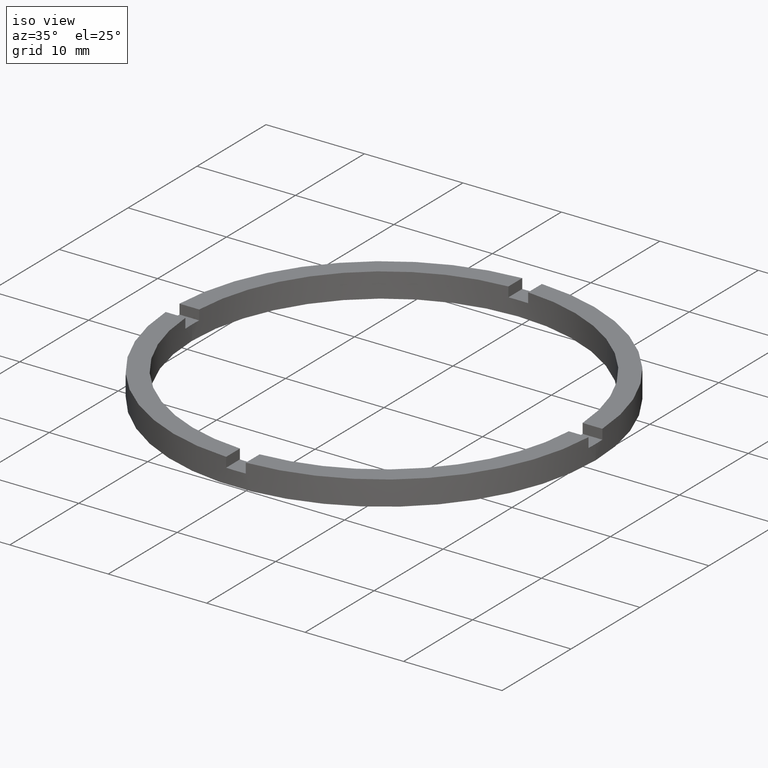
[diagram: clean part render]
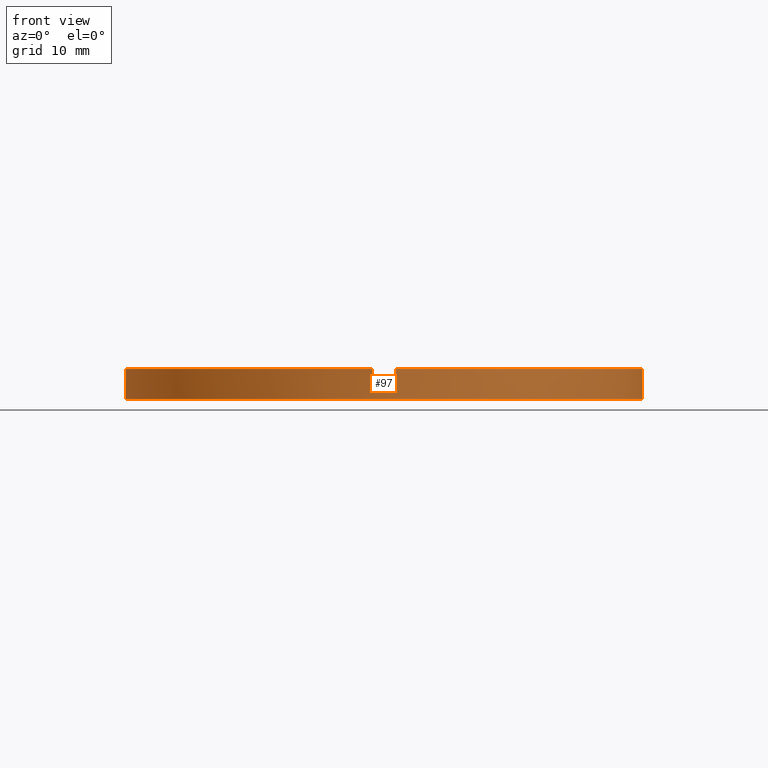
[diagram: tour spotlight — one face highlighted and labeled with its STEP entity id]
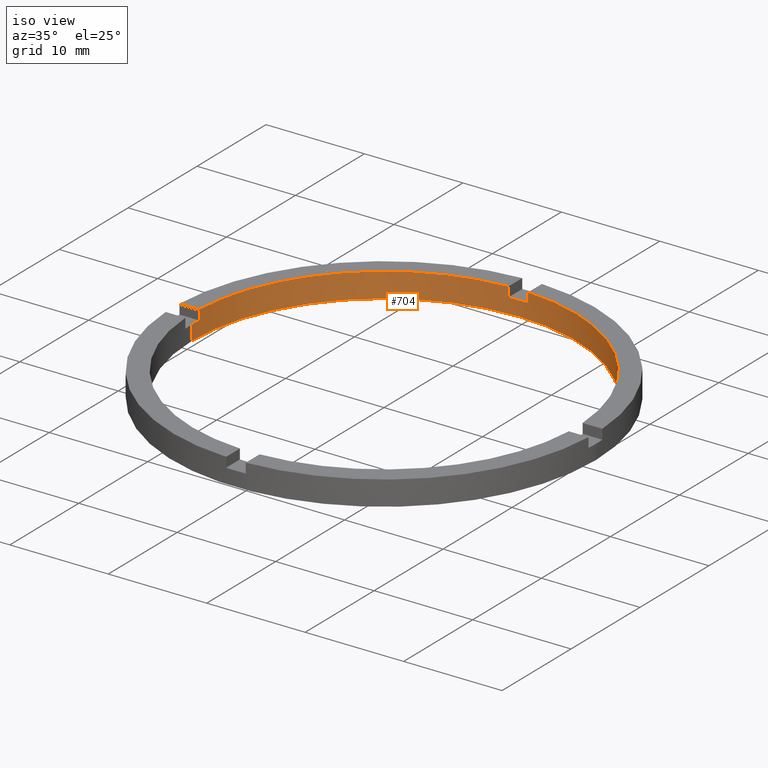
[diagram: tour spotlight — one face highlighted and labeled with its STEP entity id]
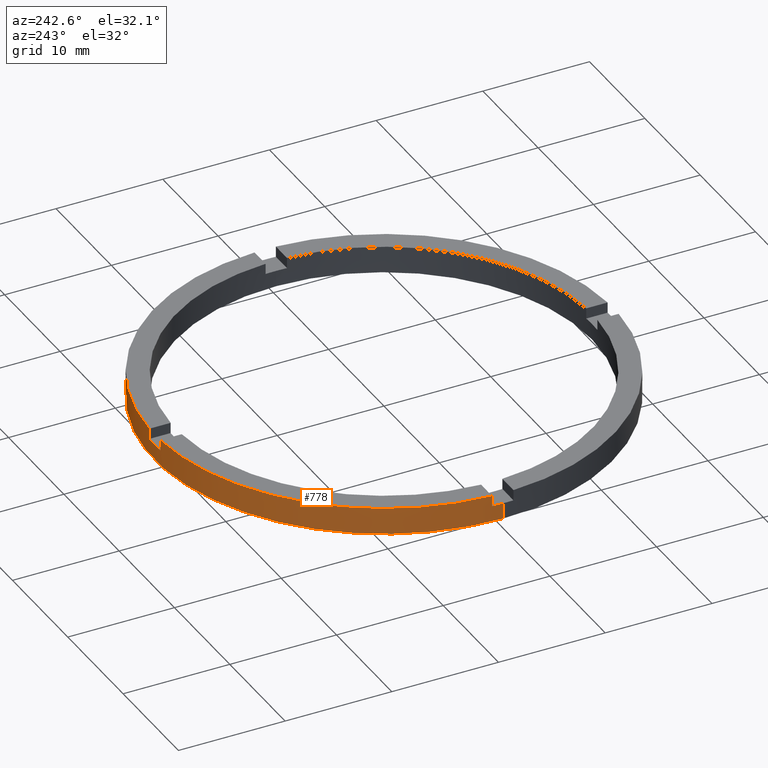
[diagram: tour spotlight — one face highlighted and labeled with its STEP entity id]
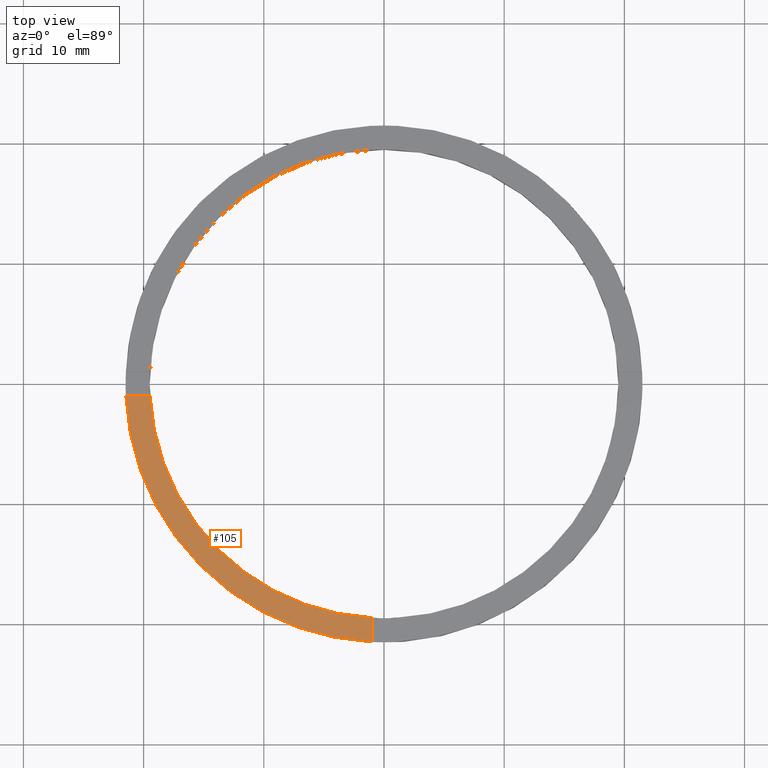
[diagram: tour spotlight — one face highlighted and labeled with its STEP entity id]
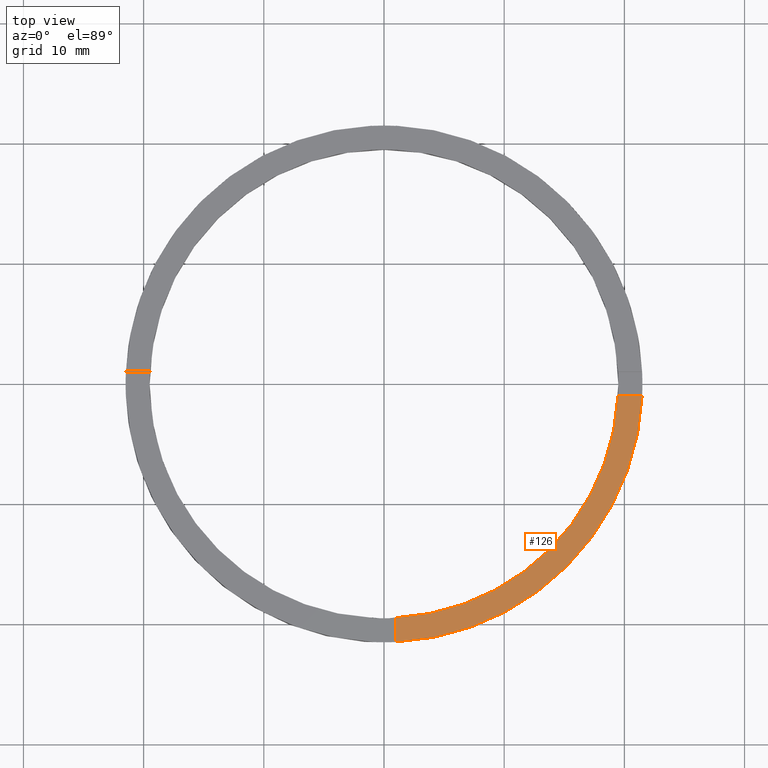
[diagram: tour spotlight — one face highlighted and labeled with its STEP entity id]
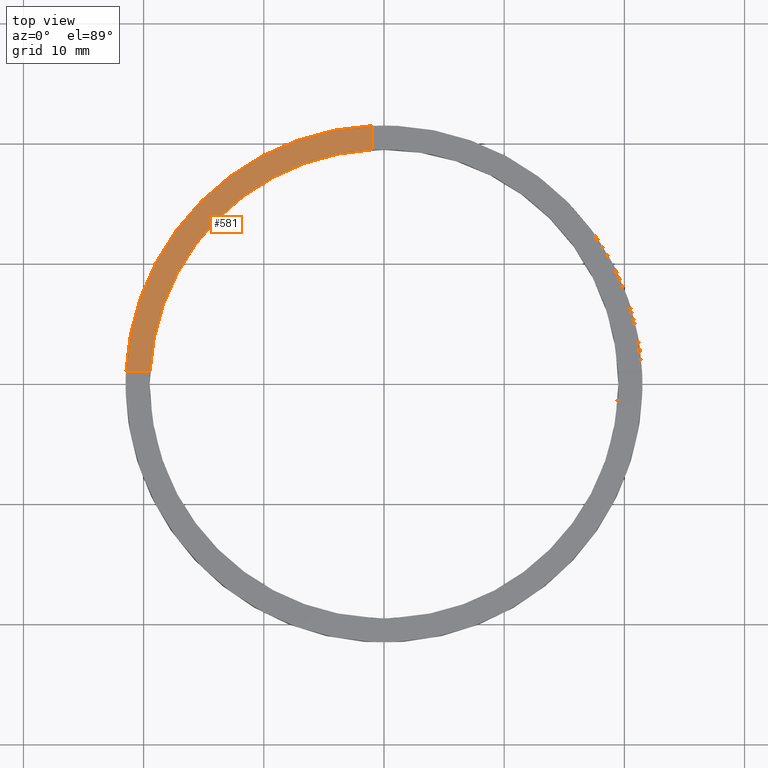
[diagram: tour spotlight — one face highlighted and labeled with its STEP entity id]
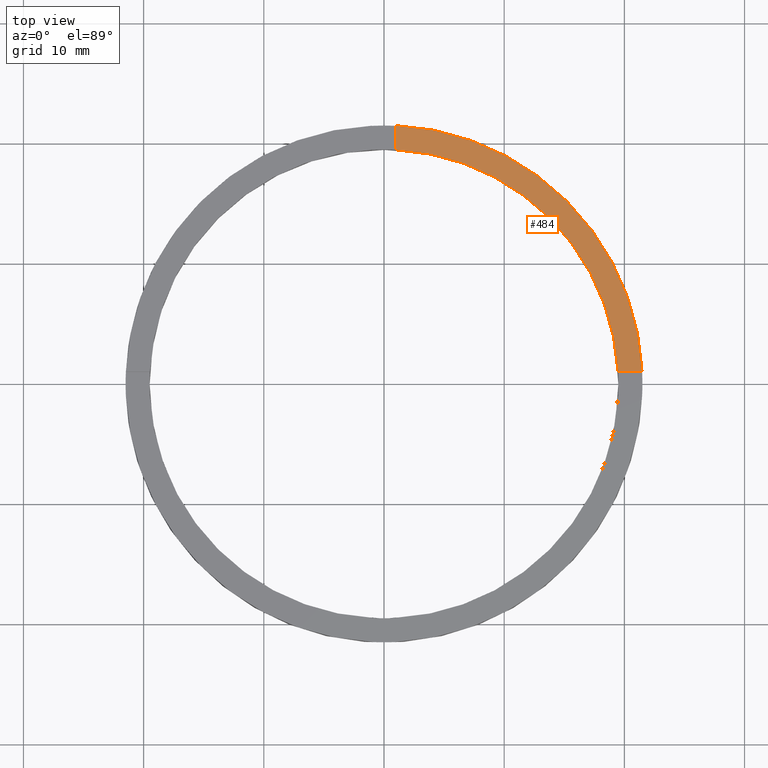
[diagram: tour spotlight — one face highlighted and labeled with its STEP entity id]
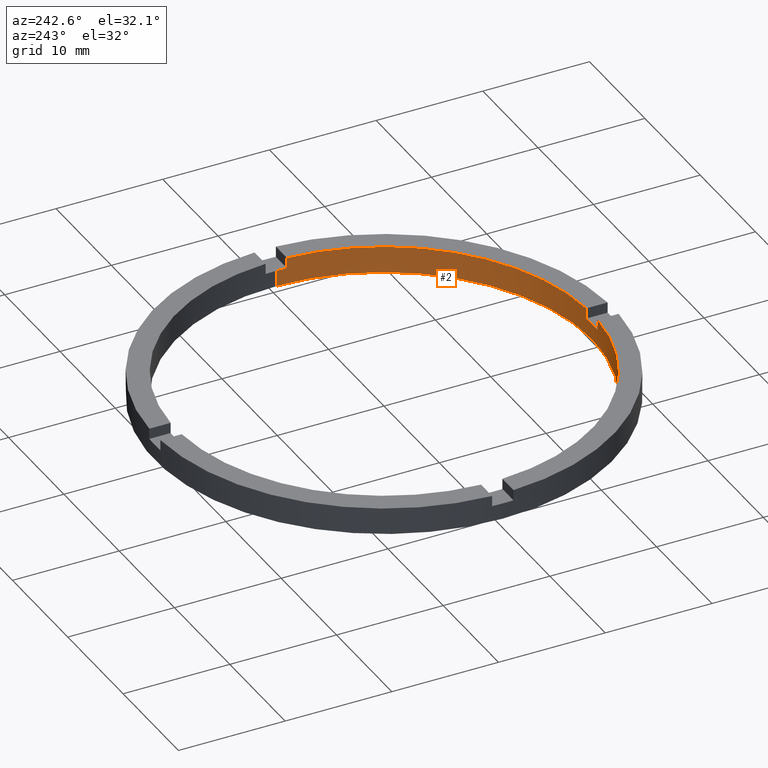
[diagram: tour spotlight — one face highlighted and labeled with its STEP entity id]
A machine part: a face-by-face anatomy tour. The part has 21 B-rep faces; the first image is the clean iso view, then the 8 largest visible faces are spotlighted one at a time (largest first), each with its STEP entity span.

Face 1 — front view, entity #97. In plain terms, the highlighted cylindrical surface (partial cylindrical patch) has radius 21.5 mm, axis along (-0, -0, -1).
Definition (entity closure, byte-faithful):
#17 = ORIENTED_EDGE ( 'NONE', *, *, #527, .T. ) ;
#29 = DIRECTION ( 'NONE',  ( -1.000000000000000000, 0.000000000000000000, 0.000000000000000000 ) ) ;
#36 = CARTESIAN_POINT ( 'NONE',  ( 0.000000000000000000, 0.000000000000000000, 1.500000000000000000 ) ) ;
#40 = CARTESIAN_POINT ( 'NONE',  ( -21.50000000000000000, 0.000000000000000000, 1.500000000000000000 ) ) ;
#43 = CARTESIAN_POINT ( 'NONE',  ( 21.47673159491452211, -1.000000000000158096, 2.500000000000000000 ) ) ;
#44 = VERTEX_POINT ( 'NONE', #427 ) ;
#50 = VERTEX_POINT ( 'NONE', #216 ) ;
#55 = DIRECTION ( 'NONE',  ( 0.000000000000000000, 0.000000000000000000, 1.000000000000000000 ) ) ;
#68 = DIRECTION ( 'NONE',  ( 1.000000000000000000, 0.000000000000000000, 0.000000000000000000 ) ) ;
#71 = CARTESIAN_POINT ( 'NONE',  ( 0.9999999999998386846, -21.47673159491453632, 2.500000000000000000 ) ) ;
#81 = EDGE_LOOP ( 'NONE', ( #532, #83, #336, #401, #357, #326, #722, #642, #17, #632, #572, #534 ) ) ;
#83 = ORIENTED_EDGE ( 'NONE', *, *, #582, .F. ) ;
#90 = VERTEX_POINT ( 'NONE', #731 ) ;
#92 = DIRECTION ( 'NONE',  ( 1.000000000000000000, 0.000000000000000000, 0.000000000000000000 ) ) ;
#97 = ADVANCED_FACE ( 'NONE', ( #143 ), #693, .T. ) ;
#102 = VERTEX_POINT ( 'NONE', #71 ) ;
#127 = CIRCLE ( 'NONE', #242, 21.50000000000000000 ) ;
#129 = AXIS2_PLACEMENT_3D ( 'NONE', #36, #482, #525 ) ;
#130 = LINE ( 'NONE', #763, #430 ) ;
#143 = FACE_OUTER_BOUND ( 'NONE', #81, .T. ) ;
#144 = CARTESIAN_POINT ( 'NONE',  ( -21.50000000000000000, 0.000000000000000000, 0.000000000000000000 ) ) ;
#174 = VECTOR ( 'NONE', #176, 1000.000000000000000 ) ;
#176 = DIRECTION ( 'NONE',  ( -0.000000000000000000, -0.000000000000000000, -1.000000000000000000 ) ) ;
#178 = LINE ( 'NONE', #644, #174 ) ;
#185 = VERTEX_POINT ( 'NONE', #514 ) ;
#208 = CARTESIAN_POINT ( 'NONE',  ( 0.000000000000000000, 0.000000000000000000, 1.500000000000000000 ) ) ;
#209 = EDGE_CURVE ( 'NONE', #274, #337, #678, .T. ) ;
#216 = CARTESIAN_POINT ( 'NONE',  ( -21.47673159491452566, -1.000000000000024869, 2.500000000000000000 ) ) ;
#221 = AXIS2_PLACEMENT_3D ( 'NONE', #695, #541, #537 ) ;
#225 = EDGE_CURVE ( 'NONE', #44, #738, #691, .T. ) ;
#242 = AXIS2_PLACEMENT_3D ( 'NONE', #470, #465, #68 ) ;
#251 = DIRECTION ( 'NONE',  ( -0.000000000000000000, -0.000000000000000000, -1.000000000000000000 ) ) ;
#257 = EDGE_CURVE ( 'NONE', #102, #372, #650, .T. ) ;
#264 = CARTESIAN_POINT ( 'NONE',  ( 21.50000000000000000, 2.632990618166809235E-15, 0.000000000000000000 ) ) ;
#267 = DIRECTION ( 'NONE',  ( 0.000000000000000000, 0.000000000000000000, 1.000000000000000000 ) ) ;
#274 = VERTEX_POINT ( 'NONE', #40 ) ;
#288 = AXIS2_PLACEMENT_3D ( 'NONE', #208, #55, #730 ) ;
#298 = CARTESIAN_POINT ( 'NONE',  ( -1.000000000000161426, -21.47673159491451855, 2.500000000000000000 ) ) ;
#301 = DIRECTION ( 'NONE',  ( -0.000000000000000000, -0.000000000000000000, -1.000000000000000000 ) ) ;
#302 = AXIS2_PLACEMENT_3D ( 'NONE', #721, #762, #304 ) ;
#304 = DIRECTION ( 'NONE',  ( 1.000000000000000000, 0.000000000000000000, 0.000000000000000000 ) ) ;
#310 = VERTEX_POINT ( 'NONE', #298 ) ;
#321 = AXIS2_PLACEMENT_3D ( 'NONE', #563, #767, #29 ) ;
#326 = ORIENTED_EDGE ( 'NONE', *, *, #483, .F. ) ;
#336 = ORIENTED_EDGE ( 'NONE', *, *, #405, .T. ) ;
#337 = VERTEX_POINT ( 'NONE', #144 ) ;
#353 = VERTEX_POINT ( 'NONE', #479 ) ;
#357 = ORIENTED_EDGE ( 'NONE', *, *, #753, .T. ) ;
#372 = VERTEX_POINT ( 'NONE', #779 ) ;
#401 = ORIENTED_EDGE ( 'NONE', *, *, #257, .F. ) ;
#402 = CIRCLE ( 'NONE', #302, 21.50000000000000000 ) ;
#405 = EDGE_CURVE ( 'NONE', #353, #372, #673, .T. ) ;
#424 = VECTOR ( 'NONE', #251, 1000.000000000000000 ) ;
#427 = CARTESIAN_POINT ( 'NONE',  ( 21.50000000000000000, 2.632990618166809235E-15, 1.500000000000000000 ) ) ;
#430 = VECTOR ( 'NONE', #301, 1000.000000000000000 ) ;
#435 = DIRECTION ( 'NONE',  ( 0.000000000000000000, 0.000000000000000000, 1.000000000000000000 ) ) ;
#437 = LINE ( 'NONE', #774, #444 ) ;
#444 = VECTOR ( 'NONE', #267, 1000.000000000000000 ) ;
#465 = DIRECTION ( 'NONE',  ( 0.000000000000000000, 0.000000000000000000, 1.000000000000000000 ) ) ;
#470 = CARTESIAN_POINT ( 'NONE',  ( 0.000000000000000000, 0.000000000000000000, 2.500000000000000000 ) ) ;
#479 = CARTESIAN_POINT ( 'NONE',  ( 21.47673159491452211, -1.000000000000158096, 1.500000000000000000 ) ) ;
#482 = DIRECTION ( 'NONE',  ( 0.000000000000000000, 0.000000000000000000, 1.000000000000000000 ) ) ;
#483 = EDGE_CURVE ( 'NONE', #576, #185, #402, .T. ) ;
#514 = CARTESIAN_POINT ( 'NONE',  ( 0.9999999999998386846, -21.47673159491453632, 1.500000000000000000 ) ) ;
#525 = DIRECTION ( 'NONE',  ( 1.000000000000000000, 0.000000000000000000, 0.000000000000000000 ) ) ;
#527 = EDGE_CURVE ( 'NONE', #50, #90, #130, .T. ) ;
#532 = ORIENTED_EDGE ( 'NONE', *, *, #225, .F. ) ;
#534 = ORIENTED_EDGE ( 'NONE', *, *, #660, .T. ) ;
#537 = DIRECTION ( 'NONE',  ( 1.000000000000000000, 0.000000000000000000, 0.000000000000000000 ) ) ;
#541 = DIRECTION ( 'NONE',  ( 0.000000000000000000, 0.000000000000000000, 1.000000000000000000 ) ) ;
#548 = CARTESIAN_POINT ( 'NONE',  ( -1.000000000000161426, -21.47673159491451855, 1.500000000000000000 ) ) ;
#557 = EDGE_CURVE ( 'NONE', #50, #310, #127, .T. ) ;
#563 = CARTESIAN_POINT ( 'NONE',  ( 0.000000000000000000, 0.000000000000000000, 2.500000000000000000 ) ) ;
#572 = ORIENTED_EDGE ( 'NONE', *, *, #209, .T. ) ;
#576 = VERTEX_POINT ( 'NONE', #548 ) ;
#582 = EDGE_CURVE ( 'NONE', #353, #44, #686, .T. ) ;
#584 = CARTESIAN_POINT ( 'NONE',  ( -21.50000000000000000, 0.000000000000000000, 2.500000000000000000 ) ) ;
#590 = DIRECTION ( 'NONE',  ( 0.000000000000000000, 0.000000000000000000, 1.000000000000000000 ) ) ;
#632 = ORIENTED_EDGE ( 'NONE', *, *, #723, .F. ) ;
#642 = ORIENTED_EDGE ( 'NONE', *, *, #557, .F. ) ;
#644 = CARTESIAN_POINT ( 'NONE',  ( 0.9999999999998386846, -21.47673159491453632, 2.500000000000000000 ) ) ;
#650 = CIRCLE ( 'NONE', #221, 21.50000000000000000 ) ;
#660 = EDGE_CURVE ( 'NONE', #337, #738, #696, .T. ) ;
#673 = LINE ( 'NONE', #43, #690 ) ;
#678 = LINE ( 'NONE', #584, #700 ) ;
#686 = CIRCLE ( 'NONE', #288, 21.50000000000000000 ) ;
#690 = VECTOR ( 'NONE', #590, 1000.000000000000000 ) ;
#691 = LINE ( 'NONE', #781, #424 ) ;
#693 = CYLINDRICAL_SURFACE ( 'NONE', #321, 21.50000000000000000 ) ;
#694 = DIRECTION ( 'NONE',  ( -0.000000000000000000, -0.000000000000000000, -1.000000000000000000 ) ) ;
#695 = CARTESIAN_POINT ( 'NONE',  ( 0.000000000000000000, 0.000000000000000000, 2.500000000000000000 ) ) ;
#696 = CIRCLE ( 'NONE', #777, 21.50000000000000000 ) ;
#700 = VECTOR ( 'NONE', #694, 1000.000000000000000 ) ;
#708 = CIRCLE ( 'NONE', #129, 21.50000000000000000 ) ;
#721 = CARTESIAN_POINT ( 'NONE',  ( 0.000000000000000000, 0.000000000000000000, 1.500000000000000000 ) ) ;
#722 = ORIENTED_EDGE ( 'NONE', *, *, #759, .T. ) ;
#723 = EDGE_CURVE ( 'NONE', #274, #90, #708, .T. ) ;
#730 = DIRECTION ( 'NONE',  ( 1.000000000000000000, 0.000000000000000000, 0.000000000000000000 ) ) ;
#731 = CARTESIAN_POINT ( 'NONE',  ( -21.47673159491452566, -1.000000000000024869, 1.500000000000000000 ) ) ;
#738 = VERTEX_POINT ( 'NONE', #264 ) ;
#753 = EDGE_CURVE ( 'NONE', #102, #185, #178, .T. ) ;
#759 = EDGE_CURVE ( 'NONE', #576, #310, #437, .T. ) ;
#762 = DIRECTION ( 'NONE',  ( -0.000000000000000000, 0.000000000000000000, 1.000000000000000000 ) ) ;
#763 = CARTESIAN_POINT ( 'NONE',  ( -21.47673159491452566, -1.000000000000024869, 2.500000000000000000 ) ) ;
#767 = DIRECTION ( 'NONE',  ( -0.000000000000000000, -0.000000000000000000, -1.000000000000000000 ) ) ;
#774 = CARTESIAN_POINT ( 'NONE',  ( -1.000000000000161426, -21.47673159491451855, 2.500000000000000000 ) ) ;
#776 = CARTESIAN_POINT ( 'NONE',  ( 0.000000000000000000, 0.000000000000000000, 0.000000000000000000 ) ) ;
#777 = AXIS2_PLACEMENT_3D ( 'NONE', #776, #435, #92 ) ;
#779 = CARTESIAN_POINT ( 'NONE',  ( 21.47673159491452211, -1.000000000000158096, 2.500000000000000000 ) ) ;
#781 = CARTESIAN_POINT ( 'NONE',  ( 21.50000000000000000, 2.632990618166809235E-15, 2.500000000000000000 ) ) ;

Face 2 — iso view, entity #704. In plain terms, the highlighted cylindrical surface (partial cylindrical patch) has radius 19.5 mm, axis along (-0, -0, -1).
Definition (entity closure, byte-faithful):
#8 = ORIENTED_EDGE ( 'NONE', *, *, #333, .F. ) ;
#11 = EDGE_CURVE ( 'NONE', #641, #79, #125, .T. ) ;
#16 = VERTEX_POINT ( 'NONE', #668 ) ;
#21 = AXIS2_PLACEMENT_3D ( 'NONE', #515, #561, #222 ) ;
#22 = CARTESIAN_POINT ( 'NONE',  ( 0.9999999999999744649, 19.47434209415044748, 1.500000000000000000 ) ) ;
#32 = DIRECTION ( 'NONE',  ( 1.000000000000000000, 0.000000000000000000, 0.000000000000000000 ) ) ;
#34 = DIRECTION ( 'NONE',  ( 0.000000000000000000, 0.000000000000000000, 1.000000000000000000 ) ) ;
#35 = EDGE_CURVE ( 'NONE', #16, #275, #131, .T. ) ;
#52 = CARTESIAN_POINT ( 'NONE',  ( 19.47434209415045459, 0.9999999999998419042, 2.500000000000000000 ) ) ;
#54 = CARTESIAN_POINT ( 'NONE',  ( 0.000000000000000000, 0.000000000000000000, 2.500000000000000000 ) ) ;
#57 = ORIENTED_EDGE ( 'NONE', *, *, #280, .T. ) ;
#59 = ORIENTED_EDGE ( 'NONE', *, *, #171, .T. ) ;
#63 = ORIENTED_EDGE ( 'NONE', *, *, #11, .F. ) ;
#70 = DIRECTION ( 'NONE',  ( 1.000000000000000000, 0.000000000000000000, 0.000000000000000000 ) ) ;
#75 = ORIENTED_EDGE ( 'NONE', *, *, #761, .F. ) ;
#79 = VERTEX_POINT ( 'NONE', #720 ) ;
#88 = ORIENTED_EDGE ( 'NONE', *, *, #230, .T. ) ;
#121 = DIRECTION ( 'NONE',  ( 1.000000000000000000, 0.000000000000000000, 0.000000000000000000 ) ) ;
#125 = LINE ( 'NONE', #193, #394 ) ;
#131 = LINE ( 'NONE', #229, #149 ) ;
#136 = LINE ( 'NONE', #260, #658 ) ;
#137 = ORIENTED_EDGE ( 'NONE', *, *, #447, .T. ) ;
#139 = CIRCLE ( 'NONE', #707, 19.50000000000000000 ) ;
#149 = VECTOR ( 'NONE', #273, 1000.000000000000000 ) ;
#155 = CIRCLE ( 'NONE', #733, 19.50000000000000000 ) ;
#164 = VECTOR ( 'NONE', #568, 1000.000000000000000 ) ;
#171 = EDGE_CURVE ( 'NONE', #187, #737, #419, .T. ) ;
#175 = CIRCLE ( 'NONE', #262, 19.50000000000000000 ) ;
#177 = CYLINDRICAL_SURFACE ( 'NONE', #21, 19.50000000000000000 ) ;
#187 = VERTEX_POINT ( 'NONE', #196 ) ;
#193 = CARTESIAN_POINT ( 'NONE',  ( 0.9999999999999744649, 19.47434209415044748, 2.500000000000000000 ) ) ;
#196 = CARTESIAN_POINT ( 'NONE',  ( -19.47434209415044748, 0.9999999999999753530, 1.500000000000000000 ) ) ;
#202 = EDGE_CURVE ( 'NONE', #306, #387, #422, .T. ) ;
#205 = CARTESIAN_POINT ( 'NONE',  ( 0.000000000000000000, 0.000000000000000000, 1.500000000000000000 ) ) ;
#213 = DIRECTION ( 'NONE',  ( 0.000000000000000000, 0.000000000000000000, 1.000000000000000000 ) ) ;
#214 = CARTESIAN_POINT ( 'NONE',  ( 19.47434209415045459, 0.9999999999998419042, 2.500000000000000000 ) ) ;
#222 = DIRECTION ( 'NONE',  ( -1.000000000000000000, 0.000000000000000000, 0.000000000000000000 ) ) ;
#229 = CARTESIAN_POINT ( 'NONE',  ( -1.000000000000025535, 19.47434209415044748, 2.500000000000000000 ) ) ;
#230 = EDGE_CURVE ( 'NONE', #16, #308, #155, .T. ) ;
#231 = CARTESIAN_POINT ( 'NONE',  ( 19.47434209415045459, 0.9999999999998419042, 1.500000000000000000 ) ) ;
#239 = CARTESIAN_POINT ( 'NONE',  ( -19.47434209415044748, 0.9999999999999753530, 2.500000000000000000 ) ) ;
#248 = CARTESIAN_POINT ( 'NONE',  ( 19.50000000000000000, 2.388061258337338939E-15, 0.000000000000000000 ) ) ;
#260 = CARTESIAN_POINT ( 'NONE',  ( -19.47434209415044748, 0.9999999999999753530, 2.500000000000000000 ) ) ;
#262 = AXIS2_PLACEMENT_3D ( 'NONE', #316, #518, #32 ) ;
#273 = DIRECTION ( 'NONE',  ( -0.000000000000000000, -0.000000000000000000, -1.000000000000000000 ) ) ;
#275 = VERTEX_POINT ( 'NONE', #596 ) ;
#277 = CARTESIAN_POINT ( 'NONE',  ( -19.50000000000000000, 0.000000000000000000, 2.500000000000000000 ) ) ;
#280 = EDGE_CURVE ( 'NONE', #570, #79, #433, .T. ) ;
#284 = DIRECTION ( 'NONE',  ( 0.000000000000000000, 0.000000000000000000, 1.000000000000000000 ) ) ;
#290 = VERTEX_POINT ( 'NONE', #709 ) ;
#291 = CARTESIAN_POINT ( 'NONE',  ( 0.000000000000000000, 0.000000000000000000, 2.500000000000000000 ) ) ;
#306 = VERTEX_POINT ( 'NONE', #754 ) ;
#308 = VERTEX_POINT ( 'NONE', #239 ) ;
#311 = DIRECTION ( 'NONE',  ( 1.000000000000000000, 0.000000000000000000, 0.000000000000000000 ) ) ;
#312 = EDGE_LOOP ( 'NONE', ( #344, #137, #8, #57, #63, #373, #727, #88, #726, #59, #665, #75 ) ) ;
#316 = CARTESIAN_POINT ( 'NONE',  ( 0.000000000000000000, 0.000000000000000000, 0.000000000000000000 ) ) ;
#333 = EDGE_CURVE ( 'NONE', #570, #672, #705, .T. ) ;
#344 = ORIENTED_EDGE ( 'NONE', *, *, #202, .F. ) ;
#373 = ORIENTED_EDGE ( 'NONE', *, *, #509, .T. ) ;
#387 = VERTEX_POINT ( 'NONE', #248 ) ;
#388 = DIRECTION ( 'NONE',  ( 0.000000000000000000, 0.000000000000000000, 1.000000000000000000 ) ) ;
#389 = VECTOR ( 'NONE', #489, 1000.000000000000000 ) ;
#394 = VECTOR ( 'NONE', #34, 1000.000000000000000 ) ;
#419 = CIRCLE ( 'NONE', #549, 19.50000000000000000 ) ;
#422 = LINE ( 'NONE', #531, #687 ) ;
#433 = CIRCLE ( 'NONE', #783, 19.50000000000000000 ) ;
#447 = EDGE_CURVE ( 'NONE', #306, #672, #654, .T. ) ;
#448 = FACE_OUTER_BOUND ( 'NONE', #312, .T. ) ;
#464 = CARTESIAN_POINT ( 'NONE',  ( 0.000000000000000000, 0.000000000000000000, 1.500000000000000000 ) ) ;
#485 = EDGE_CURVE ( 'NONE', #187, #308, #136, .T. ) ;
#489 = DIRECTION ( 'NONE',  ( -0.000000000000000000, -0.000000000000000000, -1.000000000000000000 ) ) ;
#503 = CARTESIAN_POINT ( 'NONE',  ( 0.000000000000000000, 0.000000000000000000, 1.500000000000000000 ) ) ;
#509 = EDGE_CURVE ( 'NONE', #641, #275, #139, .T. ) ;
#515 = CARTESIAN_POINT ( 'NONE',  ( 0.000000000000000000, 0.000000000000000000, 2.500000000000000000 ) ) ;
#518 = DIRECTION ( 'NONE',  ( 0.000000000000000000, 0.000000000000000000, 1.000000000000000000 ) ) ;
#531 = CARTESIAN_POINT ( 'NONE',  ( 19.50000000000000000, 2.388061258337338939E-15, 2.500000000000000000 ) ) ;
#549 = AXIS2_PLACEMENT_3D ( 'NONE', #464, #724, #311 ) ;
#561 = DIRECTION ( 'NONE',  ( -0.000000000000000000, -0.000000000000000000, -1.000000000000000000 ) ) ;
#568 = DIRECTION ( 'NONE',  ( -0.000000000000000000, -0.000000000000000000, -1.000000000000000000 ) ) ;
#570 = VERTEX_POINT ( 'NONE', #214 ) ;
#575 = DIRECTION ( 'NONE',  ( -0.000000000000000000, -0.000000000000000000, -1.000000000000000000 ) ) ;
#596 = CARTESIAN_POINT ( 'NONE',  ( -1.000000000000025535, 19.47434209415044748, 1.500000000000000000 ) ) ;
#597 = DIRECTION ( 'NONE',  ( 1.000000000000000000, 0.000000000000000000, 0.000000000000000000 ) ) ;
#641 = VERTEX_POINT ( 'NONE', #22 ) ;
#654 = CIRCLE ( 'NONE', #743, 19.50000000000000000 ) ;
#658 = VECTOR ( 'NONE', #388, 1000.000000000000000 ) ;
#663 = EDGE_CURVE ( 'NONE', #737, #290, #701, .T. ) ;
#665 = ORIENTED_EDGE ( 'NONE', *, *, #663, .T. ) ;
#668 = CARTESIAN_POINT ( 'NONE',  ( -1.000000000000025535, 19.47434209415044748, 2.500000000000000000 ) ) ;
#672 = VERTEX_POINT ( 'NONE', #231 ) ;
#687 = VECTOR ( 'NONE', #575, 1000.000000000000000 ) ;
#701 = LINE ( 'NONE', #277, #164 ) ;
#704 = ADVANCED_FACE ( 'NONE', ( #448 ), #177, .F. ) ;
#705 = LINE ( 'NONE', #52, #389 ) ;
#707 = AXIS2_PLACEMENT_3D ( 'NONE', #205, #712, #70 ) ;
#709 = CARTESIAN_POINT ( 'NONE',  ( -19.50000000000000000, 0.000000000000000000, 0.000000000000000000 ) ) ;
#712 = DIRECTION ( 'NONE',  ( 0.000000000000000000, -0.000000000000000000, 1.000000000000000000 ) ) ;
#715 = DIRECTION ( 'NONE',  ( 1.000000000000000000, 0.000000000000000000, 0.000000000000000000 ) ) ;
#720 = CARTESIAN_POINT ( 'NONE',  ( 0.9999999999999744649, 19.47434209415044748, 2.500000000000000000 ) ) ;
#724 = DIRECTION ( 'NONE',  ( 0.000000000000000000, 0.000000000000000000, 1.000000000000000000 ) ) ;
#726 = ORIENTED_EDGE ( 'NONE', *, *, #485, .F. ) ;
#727 = ORIENTED_EDGE ( 'NONE', *, *, #35, .F. ) ;
#733 = AXIS2_PLACEMENT_3D ( 'NONE', #54, #213, #597 ) ;
#737 = VERTEX_POINT ( 'NONE', #741 ) ;
#741 = CARTESIAN_POINT ( 'NONE',  ( -19.50000000000000000, 0.000000000000000000, 1.500000000000000000 ) ) ;
#743 = AXIS2_PLACEMENT_3D ( 'NONE', #503, #782, #121 ) ;
#754 = CARTESIAN_POINT ( 'NONE',  ( 19.50000000000000000, 2.388061258337338939E-15, 1.500000000000000000 ) ) ;
#761 = EDGE_CURVE ( 'NONE', #387, #290, #175, .T. ) ;
#782 = DIRECTION ( 'NONE',  ( 0.000000000000000000, 0.000000000000000000, 1.000000000000000000 ) ) ;
#783 = AXIS2_PLACEMENT_3D ( 'NONE', #291, #284, #715 ) ;

Face 3 — auxiliary view, entity #778. In plain terms, the highlighted cylindrical surface (partial cylindrical patch) has radius 21.5 mm, axis along (-0, -0, -1).
Definition (entity closure, byte-faithful):
#1 = EDGE_CURVE ( 'NONE', #580, #463, #351, .T. ) ;
#14 = DIRECTION ( 'NONE',  ( -0.000000000000000000, -0.000000000000000000, -1.000000000000000000 ) ) ;
#18 = VERTEX_POINT ( 'NONE', #237 ) ;
#19 = CARTESIAN_POINT ( 'NONE',  ( 21.47673159491453632, 0.9999999999998419042, 2.500000000000000000 ) ) ;
#24 = DIRECTION ( 'NONE',  ( -0.000000000000000000, -0.000000000000000000, -1.000000000000000000 ) ) ;
#27 = AXIS2_PLACEMENT_3D ( 'NONE', #173, #458, #497 ) ;
#31 = EDGE_CURVE ( 'NONE', #580, #274, #667, .T. ) ;
#37 = VERTEX_POINT ( 'NONE', #324 ) ;
#40 = CARTESIAN_POINT ( 'NONE',  ( -21.50000000000000000, 0.000000000000000000, 1.500000000000000000 ) ) ;
#44 = VERTEX_POINT ( 'NONE', #427 ) ;
#56 = VERTEX_POINT ( 'NONE', #19 ) ;
#60 = ORIENTED_EDGE ( 'NONE', *, *, #1, .T. ) ;
#78 = CARTESIAN_POINT ( 'NONE',  ( -1.000000000000025535, 21.47673159491452566, 2.500000000000000000 ) ) ;
#91 = CARTESIAN_POINT ( 'NONE',  ( 0.000000000000000000, 0.000000000000000000, 1.500000000000000000 ) ) ;
#104 = VECTOR ( 'NONE', #434, 1000.000000000000000 ) ;
#112 = DIRECTION ( 'NONE',  ( 1.000000000000000000, 0.000000000000000000, 0.000000000000000000 ) ) ;
#114 = EDGE_CURVE ( 'NONE', #674, #619, #151, .T. ) ;
#132 = DIRECTION ( 'NONE',  ( 1.000000000000000000, 0.000000000000000000, 0.000000000000000000 ) ) ;
#144 = CARTESIAN_POINT ( 'NONE',  ( -21.50000000000000000, 0.000000000000000000, 0.000000000000000000 ) ) ;
#151 = LINE ( 'NONE', #610, #680 ) ;
#160 = DIRECTION ( 'NONE',  ( -1.000000000000000000, 0.000000000000000000, 0.000000000000000000 ) ) ;
#161 = CIRCLE ( 'NONE', #395, 21.50000000000000000 ) ;
#173 = CARTESIAN_POINT ( 'NONE',  ( 0.000000000000000000, 0.000000000000000000, 0.000000000000000000 ) ) ;
#179 = VECTOR ( 'NONE', #471, 1000.000000000000000 ) ;
#181 = AXIS2_PLACEMENT_3D ( 'NONE', #91, #233, #524 ) ;
#188 = CARTESIAN_POINT ( 'NONE',  ( 0.9999999999999744649, 21.47673159491452921, 1.500000000000000000 ) ) ;
#190 = CARTESIAN_POINT ( 'NONE',  ( -21.47673159491452921, 0.9999999999999751310, 2.500000000000000000 ) ) ;
#191 = AXIS2_PLACEMENT_3D ( 'NONE', #295, #367, #132 ) ;
#197 = CARTESIAN_POINT ( 'NONE',  ( -1.000000000000025535, 21.47673159491452566, 2.500000000000000000 ) ) ;
#209 = EDGE_CURVE ( 'NONE', #274, #337, #678, .T. ) ;
#215 = AXIS2_PLACEMENT_3D ( 'NONE', #330, #640, #473 ) ;
#225 = EDGE_CURVE ( 'NONE', #44, #738, #691, .T. ) ;
#233 = DIRECTION ( 'NONE',  ( 0.000000000000000000, 0.000000000000000000, 1.000000000000000000 ) ) ;
#237 = CARTESIAN_POINT ( 'NONE',  ( -1.000000000000025535, 21.47673159491452566, 1.500000000000000000 ) ) ;
#245 = EDGE_CURVE ( 'NONE', #44, #37, #685, .T. ) ;
#251 = DIRECTION ( 'NONE',  ( -0.000000000000000000, -0.000000000000000000, -1.000000000000000000 ) ) ;
#264 = CARTESIAN_POINT ( 'NONE',  ( 21.50000000000000000, 2.632990618166809235E-15, 0.000000000000000000 ) ) ;
#274 = VERTEX_POINT ( 'NONE', #40 ) ;
#276 = ORIENTED_EDGE ( 'NONE', *, *, #611, .T. ) ;
#281 = ORIENTED_EDGE ( 'NONE', *, *, #209, .F. ) ;
#293 = ORIENTED_EDGE ( 'NONE', *, *, #114, .T. ) ;
#295 = CARTESIAN_POINT ( 'NONE',  ( 0.000000000000000000, 0.000000000000000000, 2.500000000000000000 ) ) ;
#320 = ORIENTED_EDGE ( 'NONE', *, *, #766, .T. ) ;
#324 = CARTESIAN_POINT ( 'NONE',  ( 21.47673159491453632, 0.9999999999998419042, 1.500000000000000000 ) ) ;
#330 = CARTESIAN_POINT ( 'NONE',  ( 0.000000000000000000, 0.000000000000000000, 1.500000000000000000 ) ) ;
#337 = VERTEX_POINT ( 'NONE', #144 ) ;
#351 = LINE ( 'NONE', #190, #104 ) ;
#355 = ORIENTED_EDGE ( 'NONE', *, *, #31, .F. ) ;
#358 = CARTESIAN_POINT ( 'NONE',  ( 0.000000000000000000, 0.000000000000000000, 2.500000000000000000 ) ) ;
#359 = ORIENTED_EDGE ( 'NONE', *, *, #553, .T. ) ;
#367 = DIRECTION ( 'NONE',  ( 0.000000000000000000, 0.000000000000000000, 1.000000000000000000 ) ) ;
#393 = CIRCLE ( 'NONE', #191, 21.50000000000000000 ) ;
#395 = AXIS2_PLACEMENT_3D ( 'NONE', #358, #749, #112 ) ;
#421 = LINE ( 'NONE', #725, #423 ) ;
#423 = VECTOR ( 'NONE', #14, 1000.000000000000000 ) ;
#424 = VECTOR ( 'NONE', #251, 1000.000000000000000 ) ;
#427 = CARTESIAN_POINT ( 'NONE',  ( 21.50000000000000000, 2.632990618166809235E-15, 1.500000000000000000 ) ) ;
#434 = DIRECTION ( 'NONE',  ( 0.000000000000000000, 0.000000000000000000, 1.000000000000000000 ) ) ;
#438 = EDGE_CURVE ( 'NONE', #56, #619, #393, .T. ) ;
#439 = LINE ( 'NONE', #78, #179 ) ;
#442 = FACE_OUTER_BOUND ( 'NONE', #538, .T. ) ;
#450 = CARTESIAN_POINT ( 'NONE',  ( 0.9999999999999744649, 21.47673159491452921, 2.500000000000000000 ) ) ;
#454 = CARTESIAN_POINT ( 'NONE',  ( 0.000000000000000000, 0.000000000000000000, 1.500000000000000000 ) ) ;
#458 = DIRECTION ( 'NONE',  ( 0.000000000000000000, 0.000000000000000000, 1.000000000000000000 ) ) ;
#463 = VERTEX_POINT ( 'NONE', #703 ) ;
#466 = VERTEX_POINT ( 'NONE', #197 ) ;
#471 = DIRECTION ( 'NONE',  ( -0.000000000000000000, -0.000000000000000000, -1.000000000000000000 ) ) ;
#473 = DIRECTION ( 'NONE',  ( 1.000000000000000000, 0.000000000000000000, 0.000000000000000000 ) ) ;
#477 = EDGE_CURVE ( 'NONE', #466, #463, #161, .T. ) ;
#488 = AXIS2_PLACEMENT_3D ( 'NONE', #595, #24, #160 ) ;
#495 = AXIS2_PLACEMENT_3D ( 'NONE', #454, #499, #758 ) ;
#497 = DIRECTION ( 'NONE',  ( 1.000000000000000000, 0.000000000000000000, 0.000000000000000000 ) ) ;
#499 = DIRECTION ( 'NONE',  ( 0.000000000000000000, 0.000000000000000000, 1.000000000000000000 ) ) ;
#524 = DIRECTION ( 'NONE',  ( 1.000000000000000000, 0.000000000000000000, 0.000000000000000000 ) ) ;
#538 = EDGE_LOOP ( 'NONE', ( #585, #662, #359, #281, #355, #60, #559, #320, #560, #293, #569, #276 ) ) ;
#553 = EDGE_CURVE ( 'NONE', #738, #337, #661, .T. ) ;
#554 = CARTESIAN_POINT ( 'NONE',  ( -21.47673159491452921, 0.9999999999999751310, 1.500000000000000000 ) ) ;
#559 = ORIENTED_EDGE ( 'NONE', *, *, #477, .F. ) ;
#560 = ORIENTED_EDGE ( 'NONE', *, *, #681, .F. ) ;
#569 = ORIENTED_EDGE ( 'NONE', *, *, #438, .F. ) ;
#580 = VERTEX_POINT ( 'NONE', #554 ) ;
#584 = CARTESIAN_POINT ( 'NONE',  ( -21.50000000000000000, 0.000000000000000000, 2.500000000000000000 ) ) ;
#585 = ORIENTED_EDGE ( 'NONE', *, *, #245, .F. ) ;
#595 = CARTESIAN_POINT ( 'NONE',  ( 0.000000000000000000, 0.000000000000000000, 2.500000000000000000 ) ) ;
#610 = CARTESIAN_POINT ( 'NONE',  ( 0.9999999999999744649, 21.47673159491452921, 2.500000000000000000 ) ) ;
#611 = EDGE_CURVE ( 'NONE', #56, #37, #421, .T. ) ;
#619 = VERTEX_POINT ( 'NONE', #450 ) ;
#626 = DIRECTION ( 'NONE',  ( 0.000000000000000000, 0.000000000000000000, 1.000000000000000000 ) ) ;
#640 = DIRECTION ( 'NONE',  ( 0.000000000000000000, -0.000000000000000000, 1.000000000000000000 ) ) ;
#661 = CIRCLE ( 'NONE', #27, 21.50000000000000000 ) ;
#662 = ORIENTED_EDGE ( 'NONE', *, *, #225, .T. ) ;
#667 = CIRCLE ( 'NONE', #181, 21.50000000000000000 ) ;
#674 = VERTEX_POINT ( 'NONE', #188 ) ;
#678 = LINE ( 'NONE', #584, #700 ) ;
#680 = VECTOR ( 'NONE', #626, 1000.000000000000000 ) ;
#681 = EDGE_CURVE ( 'NONE', #674, #18, #710, .T. ) ;
#685 = CIRCLE ( 'NONE', #495, 21.50000000000000000 ) ;
#691 = LINE ( 'NONE', #781, #424 ) ;
#694 = DIRECTION ( 'NONE',  ( -0.000000000000000000, -0.000000000000000000, -1.000000000000000000 ) ) ;
#700 = VECTOR ( 'NONE', #694, 1000.000000000000000 ) ;
#703 = CARTESIAN_POINT ( 'NONE',  ( -21.47673159491452921, 0.9999999999999751310, 2.500000000000000000 ) ) ;
#710 = CIRCLE ( 'NONE', #215, 21.50000000000000000 ) ;
#719 = CYLINDRICAL_SURFACE ( 'NONE', #488, 21.50000000000000000 ) ;
#725 = CARTESIAN_POINT ( 'NONE',  ( 21.47673159491453632, 0.9999999999998419042, 2.500000000000000000 ) ) ;
#738 = VERTEX_POINT ( 'NONE', #264 ) ;
#749 = DIRECTION ( 'NONE',  ( 0.000000000000000000, 0.000000000000000000, 1.000000000000000000 ) ) ;
#758 = DIRECTION ( 'NONE',  ( 1.000000000000000000, 0.000000000000000000, 0.000000000000000000 ) ) ;
#766 = EDGE_CURVE ( 'NONE', #466, #18, #439, .T. ) ;
#778 = ADVANCED_FACE ( 'NONE', ( #442 ), #719, .T. ) ;
#781 = CARTESIAN_POINT ( 'NONE',  ( 21.50000000000000000, 2.632990618166809235E-15, 2.500000000000000000 ) ) ;

Face 4 — top view, entity #105. In plain terms, the highlighted planar face has unit normal (0, 0, 1).
Definition (entity closure, byte-faithful):
#48 = ORIENTED_EDGE ( 'NONE', *, *, #579, .F. ) ;
#50 = VERTEX_POINT ( 'NONE', #216 ) ;
#51 = EDGE_CURVE ( 'NONE', #769, #657, #146, .T. ) ;
#64 = CARTESIAN_POINT ( 'NONE',  ( -19.47434209415044748, -1.000000000000024647, 2.500000000000000000 ) ) ;
#68 = DIRECTION ( 'NONE',  ( 1.000000000000000000, 0.000000000000000000, 0.000000000000000000 ) ) ;
#74 = AXIS2_PLACEMENT_3D ( 'NONE', #223, #266, #552 ) ;
#96 = ORIENTED_EDGE ( 'NONE', *, *, #278, .F. ) ;
#105 = ADVANCED_FACE ( 'NONE', ( #415 ), #258, .T. ) ;
#127 = CIRCLE ( 'NONE', #242, 21.50000000000000000 ) ;
#146 = CIRCLE ( 'NONE', #285, 19.50000000000000000 ) ;
#167 = VECTOR ( 'NONE', #240, 1000.000000000000000 ) ;
#183 = EDGE_LOOP ( 'NONE', ( #48, #279, #96, #613 ) ) ;
#207 = CARTESIAN_POINT ( 'NONE',  ( -11.50000000000018296, -1.000000000000023315, 2.500000000000000000 ) ) ;
#216 = CARTESIAN_POINT ( 'NONE',  ( -21.47673159491452566, -1.000000000000024869, 2.500000000000000000 ) ) ;
#223 = CARTESIAN_POINT ( 'NONE',  ( 0.000000000000000000, 0.000000000000000000, 2.500000000000000000 ) ) ;
#240 = DIRECTION ( 'NONE',  ( 1.000000000000000000, 1.734723475976807341E-16, -0.000000000000000000 ) ) ;
#242 = AXIS2_PLACEMENT_3D ( 'NONE', #470, #465, #68 ) ;
#256 = CARTESIAN_POINT ( 'NONE',  ( -1.000000000000162759, -11.50000000000017764, 2.500000000000000000 ) ) ;
#258 = PLANE ( 'NONE',  #74 ) ;
#266 = DIRECTION ( 'NONE',  ( 0.000000000000000000, 0.000000000000000000, 1.000000000000000000 ) ) ;
#278 = EDGE_CURVE ( 'NONE', #50, #769, #688, .T. ) ;
#279 = ORIENTED_EDGE ( 'NONE', *, *, #51, .F. ) ;
#285 = AXIS2_PLACEMENT_3D ( 'NONE', #410, #467, #510 ) ;
#298 = CARTESIAN_POINT ( 'NONE',  ( -1.000000000000161426, -21.47673159491451855, 2.500000000000000000 ) ) ;
#310 = VERTEX_POINT ( 'NONE', #298 ) ;
#404 = CARTESIAN_POINT ( 'NONE',  ( -1.000000000000161648, -19.47434209415043682, 2.500000000000000000 ) ) ;
#410 = CARTESIAN_POINT ( 'NONE',  ( 0.000000000000000000, 0.000000000000000000, 2.500000000000000000 ) ) ;
#412 = VECTOR ( 'NONE', #598, 1000.000000000000000 ) ;
#415 = FACE_OUTER_BOUND ( 'NONE', #183, .T. ) ;
#465 = DIRECTION ( 'NONE',  ( 0.000000000000000000, 0.000000000000000000, 1.000000000000000000 ) ) ;
#467 = DIRECTION ( 'NONE',  ( 0.000000000000000000, 0.000000000000000000, 1.000000000000000000 ) ) ;
#470 = CARTESIAN_POINT ( 'NONE',  ( 0.000000000000000000, 0.000000000000000000, 2.500000000000000000 ) ) ;
#510 = DIRECTION ( 'NONE',  ( 1.000000000000000000, 0.000000000000000000, 0.000000000000000000 ) ) ;
#552 = DIRECTION ( 'NONE',  ( 1.000000000000000000, 0.000000000000000000, -0.000000000000000000 ) ) ;
#557 = EDGE_CURVE ( 'NONE', #50, #310, #127, .T. ) ;
#579 = EDGE_CURVE ( 'NONE', #657, #310, #671, .T. ) ;
#598 = DIRECTION ( 'NONE',  ( 1.301042606982605321E-16, -1.000000000000000000, 0.000000000000000000 ) ) ;
#613 = ORIENTED_EDGE ( 'NONE', *, *, #557, .T. ) ;
#657 = VERTEX_POINT ( 'NONE', #404 ) ;
#671 = LINE ( 'NONE', #256, #412 ) ;
#688 = LINE ( 'NONE', #207, #167 ) ;
#769 = VERTEX_POINT ( 'NONE', #64 ) ;

Face 5 — top view, entity #126. In plain terms, the highlighted planar face has unit normal (0, 0, 1).
Definition (entity closure, byte-faithful):
#23 = ORIENTED_EDGE ( 'NONE', *, *, #461, .F. ) ;
#71 = CARTESIAN_POINT ( 'NONE',  ( 0.9999999999998386846, -21.47673159491453632, 2.500000000000000000 ) ) ;
#102 = VERTEX_POINT ( 'NONE', #71 ) ;
#109 = ORIENTED_EDGE ( 'NONE', *, *, #257, .T. ) ;
#117 = VECTOR ( 'NONE', #456, 1000.000000000000000 ) ;
#126 = ADVANCED_FACE ( 'NONE', ( #426 ), #739, .T. ) ;
#153 = CARTESIAN_POINT ( 'NONE',  ( 11.49999999999999289, -1.000000000000158540, 2.500000000000000000 ) ) ;
#168 = EDGE_CURVE ( 'NONE', #649, #328, #684, .T. ) ;
#172 = DIRECTION ( 'NONE',  ( 0.000000000000000000, 0.000000000000000000, 1.000000000000000000 ) ) ;
#201 = CARTESIAN_POINT ( 'NONE',  ( 0.9999999999998373523, -11.50000000000017764, 2.500000000000000000 ) ) ;
#212 = CARTESIAN_POINT ( 'NONE',  ( 0.000000000000000000, 0.000000000000000000, 2.500000000000000000 ) ) ;
#221 = AXIS2_PLACEMENT_3D ( 'NONE', #695, #541, #537 ) ;
#257 = EDGE_CURVE ( 'NONE', #102, #372, #650, .T. ) ;
#283 = EDGE_CURVE ( 'NONE', #328, #372, #679, .T. ) ;
#299 = CARTESIAN_POINT ( 'NONE',  ( 0.000000000000000000, 0.000000000000000000, 2.500000000000000000 ) ) ;
#307 = ORIENTED_EDGE ( 'NONE', *, *, #283, .F. ) ;
#328 = VERTEX_POINT ( 'NONE', #602 ) ;
#372 = VERTEX_POINT ( 'NONE', #779 ) ;
#379 = DIRECTION ( 'NONE',  ( 1.000000000000000000, 0.000000000000000000, 0.000000000000000000 ) ) ;
#397 = EDGE_LOOP ( 'NONE', ( #307, #578, #23, #109 ) ) ;
#417 = DIRECTION ( 'NONE',  ( 0.000000000000000000, 0.000000000000000000, 1.000000000000000000 ) ) ;
#426 = FACE_OUTER_BOUND ( 'NONE', #397, .T. ) ;
#432 = VECTOR ( 'NONE', #446, 1000.000000000000000 ) ;
#440 = AXIS2_PLACEMENT_3D ( 'NONE', #299, #172, #379 ) ;
#446 = DIRECTION ( 'NONE',  ( 1.000000000000000000, 4.336808689942018352E-17, 0.000000000000000000 ) ) ;
#456 = DIRECTION ( 'NONE',  ( -1.301042606982605321E-16, 1.000000000000000000, -0.000000000000000000 ) ) ;
#461 = EDGE_CURVE ( 'NONE', #102, #649, #702, .T. ) ;
#537 = DIRECTION ( 'NONE',  ( 1.000000000000000000, 0.000000000000000000, 0.000000000000000000 ) ) ;
#541 = DIRECTION ( 'NONE',  ( 0.000000000000000000, 0.000000000000000000, 1.000000000000000000 ) ) ;
#542 = CARTESIAN_POINT ( 'NONE',  ( 0.9999999999998384625, -19.47434209415045814, 2.500000000000000000 ) ) ;
#578 = ORIENTED_EDGE ( 'NONE', *, *, #168, .F. ) ;
#602 = CARTESIAN_POINT ( 'NONE',  ( 19.47434209415044037, -1.000000000000158096, 2.500000000000000000 ) ) ;
#615 = DIRECTION ( 'NONE',  ( 1.000000000000000000, 0.000000000000000000, -0.000000000000000000 ) ) ;
#649 = VERTEX_POINT ( 'NONE', #542 ) ;
#650 = CIRCLE ( 'NONE', #221, 21.50000000000000000 ) ;
#679 = LINE ( 'NONE', #153, #432 ) ;
#684 = CIRCLE ( 'NONE', #440, 19.50000000000000000 ) ;
#689 = AXIS2_PLACEMENT_3D ( 'NONE', #212, #417, #615 ) ;
#695 = CARTESIAN_POINT ( 'NONE',  ( 0.000000000000000000, 0.000000000000000000, 2.500000000000000000 ) ) ;
#702 = LINE ( 'NONE', #201, #117 ) ;
#739 = PLANE ( 'NONE',  #689 ) ;
#779 = CARTESIAN_POINT ( 'NONE',  ( 21.47673159491452211, -1.000000000000158096, 2.500000000000000000 ) ) ;

Face 6 — top view, entity #581. In plain terms, the highlighted planar face has unit normal (0, 0, 1).
Definition (entity closure, byte-faithful):
#10 = DIRECTION ( 'NONE',  ( 1.000000000000000000, 0.000000000000000000, -0.000000000000000000 ) ) ;
#16 = VERTEX_POINT ( 'NONE', #668 ) ;
#54 = CARTESIAN_POINT ( 'NONE',  ( 0.000000000000000000, 0.000000000000000000, 2.500000000000000000 ) ) ;
#112 = DIRECTION ( 'NONE',  ( 1.000000000000000000, 0.000000000000000000, 0.000000000000000000 ) ) ;
#152 = VECTOR ( 'NONE', #241, 1000.000000000000000 ) ;
#155 = CIRCLE ( 'NONE', #733, 19.50000000000000000 ) ;
#161 = CIRCLE ( 'NONE', #395, 21.50000000000000000 ) ;
#169 = LINE ( 'NONE', #550, #382 ) ;
#197 = CARTESIAN_POINT ( 'NONE',  ( -1.000000000000025535, 21.47673159491452566, 2.500000000000000000 ) ) ;
#200 = ORIENTED_EDGE ( 'NONE', *, *, #318, .F. ) ;
#213 = DIRECTION ( 'NONE',  ( 0.000000000000000000, 0.000000000000000000, 1.000000000000000000 ) ) ;
#230 = EDGE_CURVE ( 'NONE', #16, #308, #155, .T. ) ;
#239 = CARTESIAN_POINT ( 'NONE',  ( -19.47434209415044748, 0.9999999999999753530, 2.500000000000000000 ) ) ;
#241 = DIRECTION ( 'NONE',  ( -1.000000000000000000, -1.734723475976807341E-16, 0.000000000000000000 ) ) ;
#308 = VERTEX_POINT ( 'NONE', #239 ) ;
#314 = ORIENTED_EDGE ( 'NONE', *, *, #605, .F. ) ;
#318 = EDGE_CURVE ( 'NONE', #466, #16, #169, .T. ) ;
#325 = ORIENTED_EDGE ( 'NONE', *, *, #230, .F. ) ;
#327 = AXIS2_PLACEMENT_3D ( 'NONE', #381, #369, #10 ) ;
#334 = EDGE_LOOP ( 'NONE', ( #200, #587, #314, #325 ) ) ;
#349 = DIRECTION ( 'NONE',  ( -0.000000000000000000, -1.000000000000000000, -0.000000000000000000 ) ) ;
#352 = PLANE ( 'NONE',  #327 ) ;
#358 = CARTESIAN_POINT ( 'NONE',  ( 0.000000000000000000, 0.000000000000000000, 2.500000000000000000 ) ) ;
#369 = DIRECTION ( 'NONE',  ( 0.000000000000000000, 0.000000000000000000, 1.000000000000000000 ) ) ;
#381 = CARTESIAN_POINT ( 'NONE',  ( 0.000000000000000000, 0.000000000000000000, 2.500000000000000000 ) ) ;
#382 = VECTOR ( 'NONE', #349, 1000.000000000000000 ) ;
#395 = AXIS2_PLACEMENT_3D ( 'NONE', #358, #749, #112 ) ;
#408 = FACE_OUTER_BOUND ( 'NONE', #334, .T. ) ;
#418 = LINE ( 'NONE', #760, #152 ) ;
#463 = VERTEX_POINT ( 'NONE', #703 ) ;
#466 = VERTEX_POINT ( 'NONE', #197 ) ;
#477 = EDGE_CURVE ( 'NONE', #466, #463, #161, .T. ) ;
#550 = CARTESIAN_POINT ( 'NONE',  ( -1.000000000000025535, 11.49999999999999822, 2.500000000000000000 ) ) ;
#581 = ADVANCED_FACE ( 'NONE', ( #408 ), #352, .T. ) ;
#587 = ORIENTED_EDGE ( 'NONE', *, *, #477, .T. ) ;
#597 = DIRECTION ( 'NONE',  ( 1.000000000000000000, 0.000000000000000000, 0.000000000000000000 ) ) ;
#605 = EDGE_CURVE ( 'NONE', #308, #463, #418, .T. ) ;
#668 = CARTESIAN_POINT ( 'NONE',  ( -1.000000000000025535, 19.47434209415044748, 2.500000000000000000 ) ) ;
#703 = CARTESIAN_POINT ( 'NONE',  ( -21.47673159491452921, 0.9999999999999751310, 2.500000000000000000 ) ) ;
#733 = AXIS2_PLACEMENT_3D ( 'NONE', #54, #213, #597 ) ;
#749 = DIRECTION ( 'NONE',  ( 0.000000000000000000, 0.000000000000000000, 1.000000000000000000 ) ) ;
#760 = CARTESIAN_POINT ( 'NONE',  ( -11.50000000000018296, 0.9999999999999767963, 2.500000000000000000 ) ) ;

Face 7 — top view, entity #484. In plain terms, the highlighted planar face has unit normal (0, 0, 1).
Definition (entity closure, byte-faithful):
#19 = CARTESIAN_POINT ( 'NONE',  ( 21.47673159491453632, 0.9999999999998419042, 2.500000000000000000 ) ) ;
#56 = VERTEX_POINT ( 'NONE', #19 ) ;
#66 = CARTESIAN_POINT ( 'NONE',  ( 0.000000000000000000, 0.000000000000000000, 2.500000000000000000 ) ) ;
#79 = VERTEX_POINT ( 'NONE', #720 ) ;
#101 = ORIENTED_EDGE ( 'NONE', *, *, #529, .F. ) ;
#119 = FACE_OUTER_BOUND ( 'NONE', #539, .T. ) ;
#122 = LINE ( 'NONE', #360, #386 ) ;
#132 = DIRECTION ( 'NONE',  ( 1.000000000000000000, 0.000000000000000000, 0.000000000000000000 ) ) ;
#163 = PLANE ( 'NONE',  #478 ) ;
#191 = AXIS2_PLACEMENT_3D ( 'NONE', #295, #367, #132 ) ;
#214 = CARTESIAN_POINT ( 'NONE',  ( 19.47434209415045459, 0.9999999999998419042, 2.500000000000000000 ) ) ;
#218 = DIRECTION ( 'NONE',  ( 1.000000000000000000, 0.000000000000000000, -0.000000000000000000 ) ) ;
#280 = EDGE_CURVE ( 'NONE', #570, #79, #433, .T. ) ;
#284 = DIRECTION ( 'NONE',  ( 0.000000000000000000, 0.000000000000000000, 1.000000000000000000 ) ) ;
#291 = CARTESIAN_POINT ( 'NONE',  ( 0.000000000000000000, 0.000000000000000000, 2.500000000000000000 ) ) ;
#295 = CARTESIAN_POINT ( 'NONE',  ( 0.000000000000000000, 0.000000000000000000, 2.500000000000000000 ) ) ;
#341 = CARTESIAN_POINT ( 'NONE',  ( 0.9999999999999744649, 11.49999999999999822, 2.500000000000000000 ) ) ;
#347 = EDGE_CURVE ( 'NONE', #79, #619, #436, .T. ) ;
#360 = CARTESIAN_POINT ( 'NONE',  ( 11.49999999999999289, 0.9999999999998414602, 2.500000000000000000 ) ) ;
#367 = DIRECTION ( 'NONE',  ( 0.000000000000000000, 0.000000000000000000, 1.000000000000000000 ) ) ;
#386 = VECTOR ( 'NONE', #617, 1000.000000000000000 ) ;
#393 = CIRCLE ( 'NONE', #191, 21.50000000000000000 ) ;
#396 = VECTOR ( 'NONE', #487, 1000.000000000000000 ) ;
#433 = CIRCLE ( 'NONE', #783, 19.50000000000000000 ) ;
#436 = LINE ( 'NONE', #341, #396 ) ;
#438 = EDGE_CURVE ( 'NONE', #56, #619, #393, .T. ) ;
#450 = CARTESIAN_POINT ( 'NONE',  ( 0.9999999999999744649, 21.47673159491452921, 2.500000000000000000 ) ) ;
#460 = ORIENTED_EDGE ( 'NONE', *, *, #347, .F. ) ;
#478 = AXIS2_PLACEMENT_3D ( 'NONE', #66, #507, #218 ) ;
#484 = ADVANCED_FACE ( 'NONE', ( #119 ), #163, .T. ) ;
#487 = DIRECTION ( 'NONE',  ( 0.000000000000000000, 1.000000000000000000, 0.000000000000000000 ) ) ;
#507 = DIRECTION ( 'NONE',  ( 0.000000000000000000, 0.000000000000000000, 1.000000000000000000 ) ) ;
#529 = EDGE_CURVE ( 'NONE', #56, #570, #122, .T. ) ;
#539 = EDGE_LOOP ( 'NONE', ( #460, #546, #101, #567 ) ) ;
#546 = ORIENTED_EDGE ( 'NONE', *, *, #280, .F. ) ;
#567 = ORIENTED_EDGE ( 'NONE', *, *, #438, .T. ) ;
#570 = VERTEX_POINT ( 'NONE', #214 ) ;
#617 = DIRECTION ( 'NONE',  ( -1.000000000000000000, -4.336808689942018352E-17, -0.000000000000000000 ) ) ;
#619 = VERTEX_POINT ( 'NONE', #450 ) ;
#715 = DIRECTION ( 'NONE',  ( 1.000000000000000000, 0.000000000000000000, 0.000000000000000000 ) ) ;
#720 = CARTESIAN_POINT ( 'NONE',  ( 0.9999999999999744649, 19.47434209415044748, 2.500000000000000000 ) ) ;
#783 = AXIS2_PLACEMENT_3D ( 'NONE', #291, #284, #715 ) ;

Face 8 — auxiliary view, entity #2. In plain terms, the highlighted cylindrical surface (partial cylindrical patch) has radius 19.5 mm, axis along (-0, -0, -1).
Definition (entity closure, byte-faithful):
#2 = ADVANCED_FACE ( 'NONE', ( #647 ), #652, .F. ) ;
#4 = EDGE_CURVE ( 'NONE', #737, #639, #123, .T. ) ;
#15 = AXIS2_PLACEMENT_3D ( 'NONE', #108, #182, #775 ) ;
#26 = ORIENTED_EDGE ( 'NONE', *, *, #645, .T. ) ;
#47 = VERTEX_POINT ( 'NONE', #219 ) ;
#49 = CARTESIAN_POINT ( 'NONE',  ( 0.000000000000000000, 0.000000000000000000, 0.000000000000000000 ) ) ;
#51 = EDGE_CURVE ( 'NONE', #769, #657, #146, .T. ) ;
#53 = EDGE_LOOP ( 'NONE', ( #26, #87, #134, #94, #118, #670, #195, #385, #323, #198, #735, #113 ) ) ;
#61 = CARTESIAN_POINT ( 'NONE',  ( -19.47434209415044748, -1.000000000000024647, 1.500000000000000000 ) ) ;
#64 = CARTESIAN_POINT ( 'NONE',  ( -19.47434209415044748, -1.000000000000024647, 2.500000000000000000 ) ) ;
#67 = VERTEX_POINT ( 'NONE', #398 ) ;
#73 = EDGE_CURVE ( 'NONE', #649, #103, #140, .T. ) ;
#87 = ORIENTED_EDGE ( 'NONE', *, *, #202, .T. ) ;
#94 = ORIENTED_EDGE ( 'NONE', *, *, #663, .F. ) ;
#103 = VERTEX_POINT ( 'NONE', #643 ) ;
#108 = CARTESIAN_POINT ( 'NONE',  ( 0.000000000000000000, 0.000000000000000000, 1.500000000000000000 ) ) ;
#113 = ORIENTED_EDGE ( 'NONE', *, *, #481, .F. ) ;
#118 = ORIENTED_EDGE ( 'NONE', *, *, #4, .T. ) ;
#123 = CIRCLE ( 'NONE', #15, 19.50000000000000000 ) ;
#124 = VECTOR ( 'NONE', #629, 1000.000000000000000 ) ;
#133 = LINE ( 'NONE', #468, #159 ) ;
#134 = ORIENTED_EDGE ( 'NONE', *, *, #780, .F. ) ;
#140 = LINE ( 'NONE', #315, #158 ) ;
#146 = CIRCLE ( 'NONE', #285, 19.50000000000000000 ) ;
#156 = CARTESIAN_POINT ( 'NONE',  ( 0.000000000000000000, 0.000000000000000000, 1.500000000000000000 ) ) ;
#158 = VECTOR ( 'NONE', #513, 1000.000000000000000 ) ;
#159 = VECTOR ( 'NONE', #462, 1000.000000000000000 ) ;
#164 = VECTOR ( 'NONE', #568, 1000.000000000000000 ) ;
#166 = DIRECTION ( 'NONE',  ( 0.000000000000000000, 0.000000000000000000, 1.000000000000000000 ) ) ;
#168 = EDGE_CURVE ( 'NONE', #649, #328, #684, .T. ) ;
#172 = DIRECTION ( 'NONE',  ( 0.000000000000000000, 0.000000000000000000, 1.000000000000000000 ) ) ;
#180 = CIRCLE ( 'NONE', #521, 19.50000000000000000 ) ;
#182 = DIRECTION ( 'NONE',  ( 0.000000000000000000, 0.000000000000000000, 1.000000000000000000 ) ) ;
#195 = ORIENTED_EDGE ( 'NONE', *, *, #51, .T. ) ;
#198 = ORIENTED_EDGE ( 'NONE', *, *, #73, .F. ) ;
#202 = EDGE_CURVE ( 'NONE', #306, #387, #422, .T. ) ;
#219 = CARTESIAN_POINT ( 'NONE',  ( -1.000000000000161648, -19.47434209415043682, 1.500000000000000000 ) ) ;
#220 = DIRECTION ( 'NONE',  ( 0.000000000000000000, 0.000000000000000000, 1.000000000000000000 ) ) ;
#244 = DIRECTION ( 'NONE',  ( -0.000000000000000000, 0.000000000000000000, 1.000000000000000000 ) ) ;
#247 = DIRECTION ( 'NONE',  ( 1.000000000000000000, 0.000000000000000000, 0.000000000000000000 ) ) ;
#248 = CARTESIAN_POINT ( 'NONE',  ( 19.50000000000000000, 2.388061258337338939E-15, 0.000000000000000000 ) ) ;
#255 = CARTESIAN_POINT ( 'NONE',  ( -19.47434209415044748, -1.000000000000024647, 2.500000000000000000 ) ) ;
#271 = DIRECTION ( 'NONE',  ( 0.000000000000000000, 0.000000000000000000, 1.000000000000000000 ) ) ;
#277 = CARTESIAN_POINT ( 'NONE',  ( -19.50000000000000000, 0.000000000000000000, 2.500000000000000000 ) ) ;
#285 = AXIS2_PLACEMENT_3D ( 'NONE', #410, #467, #510 ) ;
#287 = DIRECTION ( 'NONE',  ( 1.000000000000000000, 0.000000000000000000, 0.000000000000000000 ) ) ;
#290 = VERTEX_POINT ( 'NONE', #709 ) ;
#299 = CARTESIAN_POINT ( 'NONE',  ( 0.000000000000000000, 0.000000000000000000, 2.500000000000000000 ) ) ;
#306 = VERTEX_POINT ( 'NONE', #754 ) ;
#315 = CARTESIAN_POINT ( 'NONE',  ( 0.9999999999998384625, -19.47434209415045814, 2.500000000000000000 ) ) ;
#323 = ORIENTED_EDGE ( 'NONE', *, *, #558, .T. ) ;
#328 = VERTEX_POINT ( 'NONE', #602 ) ;
#379 = DIRECTION ( 'NONE',  ( 1.000000000000000000, 0.000000000000000000, 0.000000000000000000 ) ) ;
#385 = ORIENTED_EDGE ( 'NONE', *, *, #744, .F. ) ;
#387 = VERTEX_POINT ( 'NONE', #248 ) ;
#398 = CARTESIAN_POINT ( 'NONE',  ( 19.47434209415044037, -1.000000000000158096, 1.500000000000000000 ) ) ;
#404 = CARTESIAN_POINT ( 'NONE',  ( -1.000000000000161648, -19.47434209415043682, 2.500000000000000000 ) ) ;
#410 = CARTESIAN_POINT ( 'NONE',  ( 0.000000000000000000, 0.000000000000000000, 2.500000000000000000 ) ) ;
#422 = LINE ( 'NONE', #531, #687 ) ;
#425 = CIRCLE ( 'NONE', #566, 19.50000000000000000 ) ;
#428 = LINE ( 'NONE', #255, #124 ) ;
#440 = AXIS2_PLACEMENT_3D ( 'NONE', #299, #172, #379 ) ;
#441 = LINE ( 'NONE', #732, #716 ) ;
#462 = DIRECTION ( 'NONE',  ( 0.000000000000000000, 0.000000000000000000, 1.000000000000000000 ) ) ;
#467 = DIRECTION ( 'NONE',  ( 0.000000000000000000, 0.000000000000000000, 1.000000000000000000 ) ) ;
#468 = CARTESIAN_POINT ( 'NONE',  ( 19.47434209415044037, -1.000000000000158096, 2.500000000000000000 ) ) ;
#481 = EDGE_CURVE ( 'NONE', #67, #328, #133, .T. ) ;
#500 = EDGE_CURVE ( 'NONE', #769, #639, #428, .T. ) ;
#510 = DIRECTION ( 'NONE',  ( 1.000000000000000000, 0.000000000000000000, 0.000000000000000000 ) ) ;
#513 = DIRECTION ( 'NONE',  ( -0.000000000000000000, -0.000000000000000000, -1.000000000000000000 ) ) ;
#519 = AXIS2_PLACEMENT_3D ( 'NONE', #740, #523, #573 ) ;
#521 = AXIS2_PLACEMENT_3D ( 'NONE', #49, #220, #247 ) ;
#523 = DIRECTION ( 'NONE',  ( -0.000000000000000000, -0.000000000000000000, -1.000000000000000000 ) ) ;
#531 = CARTESIAN_POINT ( 'NONE',  ( 19.50000000000000000, 2.388061258337338939E-15, 2.500000000000000000 ) ) ;
#542 = CARTESIAN_POINT ( 'NONE',  ( 0.9999999999998384625, -19.47434209415045814, 2.500000000000000000 ) ) ;
#556 = DIRECTION ( 'NONE',  ( 1.000000000000000000, 0.000000000000000000, 0.000000000000000000 ) ) ;
#558 = EDGE_CURVE ( 'NONE', #47, #103, #698, .T. ) ;
#566 = AXIS2_PLACEMENT_3D ( 'NONE', #156, #166, #287 ) ;
#568 = DIRECTION ( 'NONE',  ( -0.000000000000000000, -0.000000000000000000, -1.000000000000000000 ) ) ;
#573 = DIRECTION ( 'NONE',  ( -1.000000000000000000, 0.000000000000000000, 0.000000000000000000 ) ) ;
#575 = DIRECTION ( 'NONE',  ( -0.000000000000000000, -0.000000000000000000, -1.000000000000000000 ) ) ;
#602 = CARTESIAN_POINT ( 'NONE',  ( 19.47434209415044037, -1.000000000000158096, 2.500000000000000000 ) ) ;
#620 = AXIS2_PLACEMENT_3D ( 'NONE', #756, #244, #556 ) ;
#629 = DIRECTION ( 'NONE',  ( -0.000000000000000000, -0.000000000000000000, -1.000000000000000000 ) ) ;
#639 = VERTEX_POINT ( 'NONE', #61 ) ;
#643 = CARTESIAN_POINT ( 'NONE',  ( 0.9999999999998384625, -19.47434209415045814, 1.500000000000000000 ) ) ;
#645 = EDGE_CURVE ( 'NONE', #67, #306, #425, .T. ) ;
#647 = FACE_OUTER_BOUND ( 'NONE', #53, .T. ) ;
#649 = VERTEX_POINT ( 'NONE', #542 ) ;
#652 = CYLINDRICAL_SURFACE ( 'NONE', #519, 19.50000000000000000 ) ;
#657 = VERTEX_POINT ( 'NONE', #404 ) ;
#663 = EDGE_CURVE ( 'NONE', #737, #290, #701, .T. ) ;
#670 = ORIENTED_EDGE ( 'NONE', *, *, #500, .F. ) ;
#684 = CIRCLE ( 'NONE', #440, 19.50000000000000000 ) ;
#687 = VECTOR ( 'NONE', #575, 1000.000000000000000 ) ;
#698 = CIRCLE ( 'NONE', #620, 19.50000000000000000 ) ;
#701 = LINE ( 'NONE', #277, #164 ) ;
#709 = CARTESIAN_POINT ( 'NONE',  ( -19.50000000000000000, 0.000000000000000000, 0.000000000000000000 ) ) ;
#716 = VECTOR ( 'NONE', #271, 1000.000000000000000 ) ;
#732 = CARTESIAN_POINT ( 'NONE',  ( -1.000000000000161648, -19.47434209415043682, 2.500000000000000000 ) ) ;
#735 = ORIENTED_EDGE ( 'NONE', *, *, #168, .T. ) ;
#737 = VERTEX_POINT ( 'NONE', #741 ) ;
#740 = CARTESIAN_POINT ( 'NONE',  ( 0.000000000000000000, 0.000000000000000000, 2.500000000000000000 ) ) ;
#741 = CARTESIAN_POINT ( 'NONE',  ( -19.50000000000000000, 0.000000000000000000, 1.500000000000000000 ) ) ;
#744 = EDGE_CURVE ( 'NONE', #47, #657, #441, .T. ) ;
#754 = CARTESIAN_POINT ( 'NONE',  ( 19.50000000000000000, 2.388061258337338939E-15, 1.500000000000000000 ) ) ;
#756 = CARTESIAN_POINT ( 'NONE',  ( 0.000000000000000000, 0.000000000000000000, 1.500000000000000000 ) ) ;
#769 = VERTEX_POINT ( 'NONE', #64 ) ;
#775 = DIRECTION ( 'NONE',  ( 1.000000000000000000, 0.000000000000000000, 0.000000000000000000 ) ) ;
#780 = EDGE_CURVE ( 'NONE', #290, #387, #180, .T. ) ;